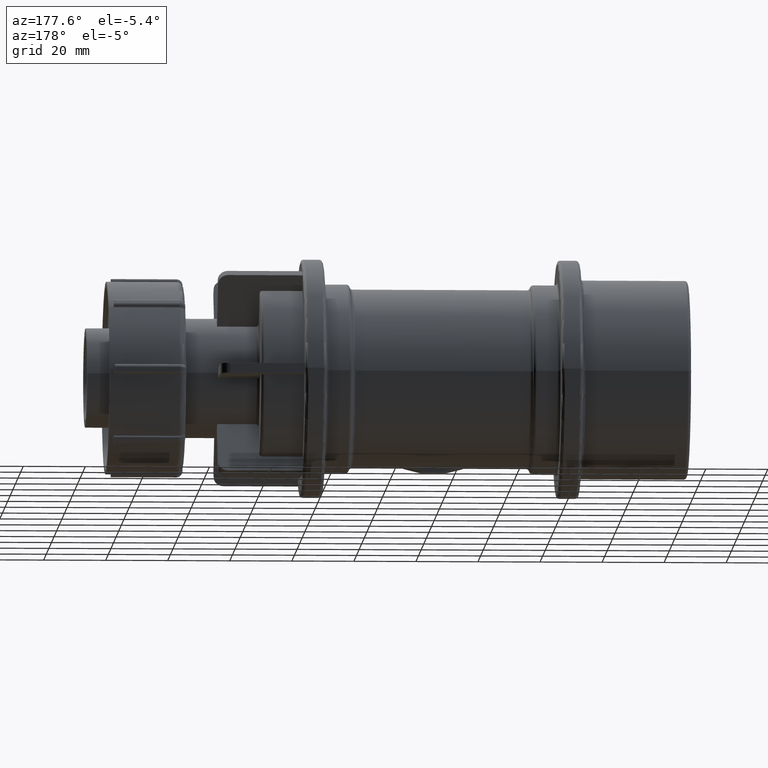
[diagram: clean part render]
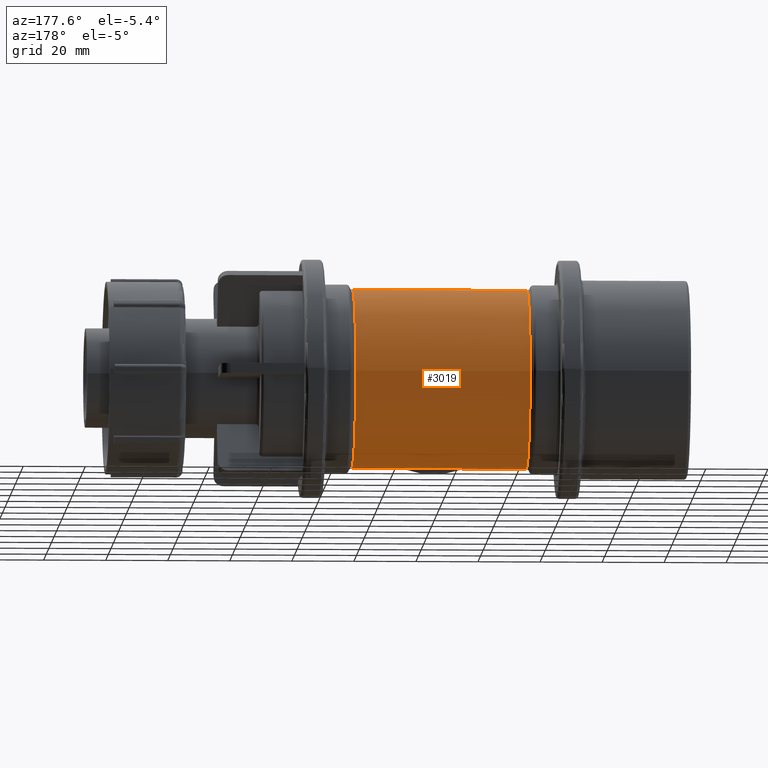
[diagram: same view with one face highlighted and labeled with its STEP entity id]
A machine part, auxiliary view. The second image highlights one B-rep face of the part: STEP entity #3019.
In plain terms, the highlighted cylindrical surface (bore or boss wall) has radius 28.8 mm, axis along (1, 0, 0).
Its self-contained STEP definition (entity closure, byte-faithful):
#524=CIRCLE('',#3253,28.8);
#525=CIRCLE('',#3255,28.8);
#752=FACE_BOUND('',#1039,.T.);
#753=FACE_BOUND('',#1040,.T.);
#812=FACE_OUTER_BOUND('',#1038,.T.);
#1038=EDGE_LOOP('',(#2092));
#1039=EDGE_LOOP('',(#2093));
#1040=EDGE_LOOP('',(#2094));
#1282=B_SPLINE_CURVE_WITH_KNOTS('',3,(#4559,#4560,#4561,#4562,#4563,#4564,
#4565,#4566,#4567,#4568,#4569,#4570,#4571,#4572,#4573,#4574,#4575,#4576,
#4577,#4578,#4579,#4580,#4581,#4582,#4583,#4584,#4585,#4586,#4587,#4588,
#4589,#4590,#4591,#4592,#4593,#4594,#4595,#4596,#4597,#4598,#4599,#4600,
#4601,#4602,#4603,#4604,#4605,#4606,#4607,#4608),.UNSPECIFIED.,.T.,.F.,
(4,2,2,2,2,2,2,2,2,2,2,2,2,2,2,2,2,2,2,2,2,2,2,2,4),(0.,0.300338842641574,
0.600677685283147,1.20135537056629,1.79970613234129,2.09888151322879,2.39805689411628,
2.69723227500378,2.99640765589128,3.59475841766627,4.19543610294942,4.49577494559099,
4.79611378823257,5.09645263087414,5.39679147351572,5.99746915879886,6.59581992057386,
6.89499530146136,7.19417068234885,7.49334606323635,7.79252144412385,8.39087220589884,
8.99154989118199,9.29188873382356,9.59222757646514),.UNSPECIFIED.);
#1334=VERTEX_POINT('',#4558);
#1349=VERTEX_POINT('',#4707);
#1350=VERTEX_POINT('',#4710);
#1628=EDGE_CURVE('',#1334,#1334,#1282,.T.);
#1643=EDGE_CURVE('',#1349,#1349,#524,.T.);
#1644=EDGE_CURVE('',#1350,#1350,#525,.T.);
#2092=ORIENTED_EDGE('',*,*,#1644,.F.);
#2093=ORIENTED_EDGE('',*,*,#1628,.T.);
#2094=ORIENTED_EDGE('',*,*,#1643,.F.);
#2940=CYLINDRICAL_SURFACE('',#3254,28.8);
#3019=ADVANCED_FACE('',(#812,#752,#753),#2940,.T.);
#3253=AXIS2_PLACEMENT_3D('',#4708,#3664,#3665);
#3254=AXIS2_PLACEMENT_3D('',#4709,#3666,#3667);
#3255=AXIS2_PLACEMENT_3D('',#4711,#3668,#3669);
#3664=DIRECTION('center_axis',(-1.,0.,0.));
#3665=DIRECTION('ref_axis',(0.,-1.,1.83697019872103E-16));
#3666=DIRECTION('center_axis',(1.,0.,0.));
#3667=DIRECTION('ref_axis',(0.,1.,0.));
#3668=DIRECTION('center_axis',(1.,0.,0.));
#3669=DIRECTION('ref_axis',(0.,1.,1.33839086354592E-14));
#4558=CARTESIAN_POINT('',(8.88178419700125E-15,-24.2502264071776,-15.535975));
#4559=CARTESIAN_POINT('Ctrl Pts',(8.88178419700125E-15,-24.2502264071776,
-15.535975));
#4560=CARTESIAN_POINT('Ctrl Pts',(-1.0011294754719,-24.2502264071776,-15.535975));
#4561=CARTESIAN_POINT('Ctrl Pts',(-2.02721253649554,-24.3140654382212,-15.4377098823787));
#4562=CARTESIAN_POINT('Ctrl Pts',(-4.05220806666102,-24.565923085382,-15.0336983872175));
#4563=CARTESIAN_POINT('Ctrl Pts',(-5.05121722364382,-24.7534577108781,-14.7281350861141));
#4564=CARTESIAN_POINT('Ctrl Pts',(-7.9083829862054,-25.4400716545857,-13.5310434003238));
#4565=CARTESIAN_POINT('Ctrl Pts',(-9.62645731999635,-26.0616471200198,-12.344729229693));
#4566=CARTESIAN_POINT('Ctrl Pts',(-12.3394641674448,-27.1811515196949,-9.63172238224455));
#4567=CARTESIAN_POINT('Ctrl Pts',(-13.5295732821547,-27.7605635681742,-7.91198598505944));
#4568=CARTESIAN_POINT('Ctrl Pts',(-14.7290378767051,-28.3707516257576,-5.04901538060278));
#4569=CARTESIAN_POINT('Ctrl Pts',(-15.0348614708759,-28.5322861291773,-4.04798704065972));
#4570=CARTESIAN_POINT('Ctrl Pts',(-15.4384022548531,-28.7469747362994,-2.02212619590107));
#4571=CARTESIAN_POINT('Ctrl Pts',(-15.535975,-28.8,-0.997251269624992));
#4572=CARTESIAN_POINT('Ctrl Pts',(-15.535975,-28.8,0.99725126962499));
#4573=CARTESIAN_POINT('Ctrl Pts',(-15.4384022548531,-28.7469747362994,2.02212619590107));
#4574=CARTESIAN_POINT('Ctrl Pts',(-15.0348614708759,-28.5322861291773,4.04798704065973));
#4575=CARTESIAN_POINT('Ctrl Pts',(-14.7290378767051,-28.3707516257576,5.04901538060278));
#4576=CARTESIAN_POINT('Ctrl Pts',(-13.5295732821547,-27.7605635681742,7.91198598505943));
#4577=CARTESIAN_POINT('Ctrl Pts',(-12.3394641674448,-27.1811515196949,9.63172238224455));
#4578=CARTESIAN_POINT('Ctrl Pts',(-9.62645731999636,-26.0616471200198,12.344729229693));
#4579=CARTESIAN_POINT('Ctrl Pts',(-7.90838298620541,-25.4400716545857,13.5310434003238));
#4580=CARTESIAN_POINT('Ctrl Pts',(-5.05121722364383,-24.7534577108781,14.7281350861141));
#4581=CARTESIAN_POINT('Ctrl Pts',(-4.05220806666102,-24.565923085382,15.0336983872175));
#4582=CARTESIAN_POINT('Ctrl Pts',(-2.02721253649555,-24.3140654382212,15.4377098823787));
#4583=CARTESIAN_POINT('Ctrl Pts',(-1.00112947547191,-24.2502264071776,15.535975));
#4584=CARTESIAN_POINT('Ctrl Pts',(1.00112947547192,-24.2502264071776,15.535975));
#4585=CARTESIAN_POINT('Ctrl Pts',(2.02721253649556,-24.3140654382212,15.4377098823787));
#4586=CARTESIAN_POINT('Ctrl Pts',(4.05220806666103,-24.565923085382,15.0336983872175));
#4587=CARTESIAN_POINT('Ctrl Pts',(5.05121722364384,-24.7534577108781,14.7281350861141));
#4588=CARTESIAN_POINT('Ctrl Pts',(7.90838298620542,-25.4400716545857,13.5310434003238));
#4589=CARTESIAN_POINT('Ctrl Pts',(9.62645731999637,-26.0616471200198,12.344729229693));
#4590=CARTESIAN_POINT('Ctrl Pts',(12.3394641674448,-27.1811515196949,9.63172238224455));
#4591=CARTESIAN_POINT('Ctrl Pts',(13.5295732821548,-27.7605635681742,7.91198598505944));
#4592=CARTESIAN_POINT('Ctrl Pts',(14.7290378767051,-28.3707516257576,5.04901538060278));
#4593=CARTESIAN_POINT('Ctrl Pts',(15.0348614708759,-28.5322861291772,4.04798704065973));
#4594=CARTESIAN_POINT('Ctrl Pts',(15.4384022548531,-28.7469747362994,2.02212619590108));
#4595=CARTESIAN_POINT('Ctrl Pts',(15.535975,-28.8,0.997251269624996));
#4596=CARTESIAN_POINT('Ctrl Pts',(15.535975,-28.8,-0.997251269624988));
#4597=CARTESIAN_POINT('Ctrl Pts',(15.4384022548531,-28.7469747362994,-2.02212619590107));
#4598=CARTESIAN_POINT('Ctrl Pts',(15.0348614708759,-28.5322861291773,-4.04798704065973));
#4599=CARTESIAN_POINT('Ctrl Pts',(14.7290378767051,-28.3707516257576,-5.04901538060278));
#4600=CARTESIAN_POINT('Ctrl Pts',(13.5295732821548,-27.7605635681742,-7.91198598505943));
#4601=CARTESIAN_POINT('Ctrl Pts',(12.3394641674448,-27.1811515196949,-9.63172238224454));
#4602=CARTESIAN_POINT('Ctrl Pts',(9.62645731999637,-26.0616471200198,-12.344729229693));
#4603=CARTESIAN_POINT('Ctrl Pts',(7.90838298620543,-25.4400716545857,-13.5310434003238));
#4604=CARTESIAN_POINT('Ctrl Pts',(5.05121722364385,-24.7534577108781,-14.7281350861141));
#4605=CARTESIAN_POINT('Ctrl Pts',(4.05220806666104,-24.565923085382,-15.0336983872175));
#4606=CARTESIAN_POINT('Ctrl Pts',(2.02721253649557,-24.3140654382212,-15.4377098823787));
#4607=CARTESIAN_POINT('Ctrl Pts',(1.00112947547192,-24.2502264071776,-15.535975));
#4608=CARTESIAN_POINT('Ctrl Pts',(7.7715611723761E-15,-24.2502264071776,
-15.535975));
#4707=CARTESIAN_POINT('',(-28.1,28.8,-8.81745695386094E-15));
#4708=CARTESIAN_POINT('Origin',(-28.1,0.,0.));
#4709=CARTESIAN_POINT('Origin',(0.,0.,0.));
#4710=CARTESIAN_POINT('',(28.1404082057735,-28.8,-3.88983551482771E-13));
#4711=CARTESIAN_POINT('Origin',(28.1404082057735,0.,0.));